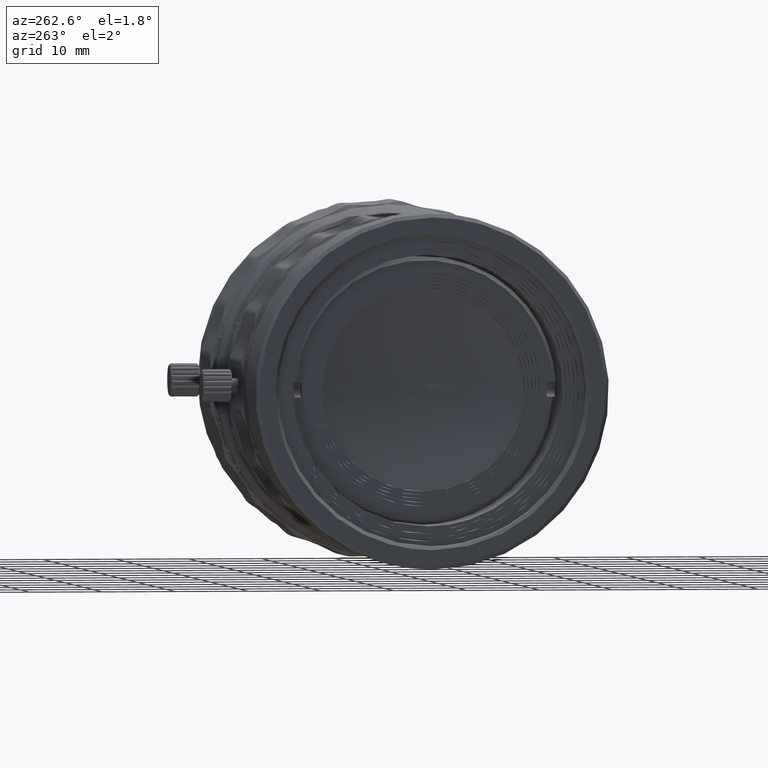
[diagram: clean part render]
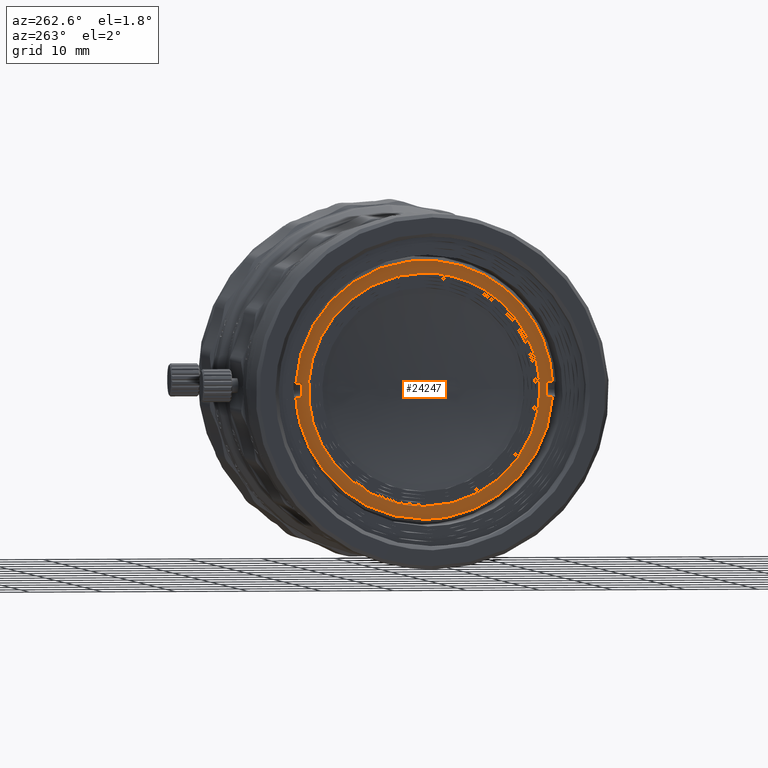
[diagram: same view with one face highlighted and labeled with its STEP entity id]
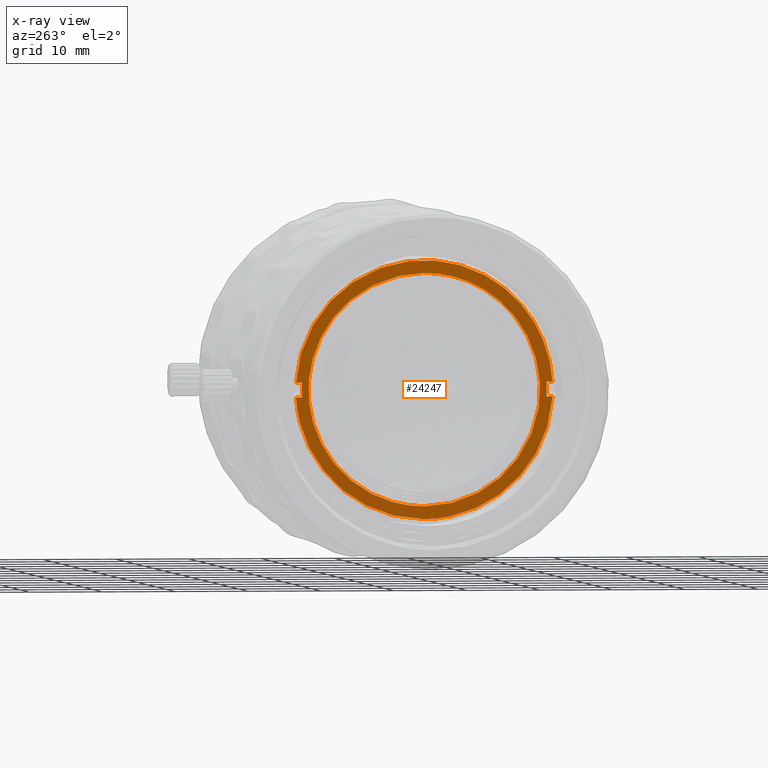
[diagram: x-ray of the same camera — body ghosted, the highlighted face saturated]
A machine part, auxiliary view. The second image highlights one B-rep face of the part: STEP entity #24247.
The next image is the same camera in x-ray: the body ghosted, the highlighted face saturated — about 0% of this face is hidden behind the body in this view.
In plain terms, the highlighted face is a freeform B-spline surface patch.
Its self-contained STEP definition (entity closure, byte-faithful):
#485 = CARTESIAN_POINT ( 'NONE',  ( 4.929999999666670796, 16.80000000060239884, -1.000000003418296091 ) ) ;
#945 = EDGE_CURVE ( 'NONE', #84180, #15927, #22776, .T. ) ;
#1522 = CARTESIAN_POINT ( 'NONE',  ( 4.930000000000000604, -17.83310562000000132, 17.86179722500000011 ) ) ;
#1565 = ORIENTED_EDGE ( 'NONE', *, *, #51378, .F. ) ;
#2072 = VERTEX_POINT ( 'NONE', #4053 ) ;
#4053 = CARTESIAN_POINT ( 'NONE',  ( 4.930000000000000604, -7.232328283580928952E-10, -17.64999725505024841 ) ) ;
#4436 = EDGE_CURVE ( 'NONE', #15927, #84180, #37191, .T. ) ;
#5562 = CARTESIAN_POINT ( 'NONE',  ( 4.930000000000006821, 9.880265853349966321, -17.64999725800000618 ) ) ;
#7749 = CARTESIAN_POINT ( 'NONE',  ( 4.929999999500000563, -17.62164586679725176, -1.000000002502931862 ) ) ;
#7774 = CARTESIAN_POINT ( 'NONE',  ( 4.929999999666670796, -16.79999999993575344, 1.000000003418296091 ) ) ;
#11230 = CARTESIAN_POINT ( 'NONE',  ( 4.930000000000000604, -4.014859207963329467E-09, 15.89999999689049837 ) ) ;
#12707 = VERTEX_POINT ( 'NONE', #7749 ) ;
#12811 = CARTESIAN_POINT ( 'NONE',  ( 4.930000000000000604, -6.184742774372570210E-10, -15.89999999689049837 ) ) ;
#13035 = CARTESIAN_POINT ( 'NONE',  ( 4.930000000000000604, 16.80000000060239884, 1.000000003418296091 ) ) ;
#13428 = ORIENTED_EDGE ( 'NONE', *, *, #4436, .F. ) ;
#14653 = CARTESIAN_POINT ( 'NONE',  ( 4.929999999583330350, 17.62164586726684945, -1.000000003562524054 ) ) ;
#15231 =( BOUNDED_CURVE ( )  B_SPLINE_CURVE ( 3, ( #25122, #58030, #25545, #32036 ),
 .UNSPECIFIED., .F., .F. ) 
 B_SPLINE_CURVE_WITH_KNOTS ( ( 4, 4 ),
 ( -3.028217476546394948, 0.0000000000000000000 ),
 .UNSPECIFIED. ) 
 CURVE ( )  GEOMETRIC_REPRESENTATION_ITEM ( )  RATIONAL_B_SPLINE_CURVE ( ( 1.000000000000000000, 0.3711048216059860128, 0.3711048216059860128, 1.000000000000000000 ) ) 
 REPRESENTATION_ITEM ( '' )  );
#15854 = VERTEX_POINT ( 'NONE', #76877 ) ;
#15927 = VERTEX_POINT ( 'NONE', #12811 ) ;
#16618 = B_SPLINE_CURVE_WITH_KNOTS ( 'NONE', 1,
 ( #23993, #50362 ),
 .UNSPECIFIED., .F., .F.,
 ( 2, 2 ),
 ( 0.0000000000000000000, 1.000000000000000000 ),
 .UNSPECIFIED. ) ;
#16823 = EDGE_CURVE ( 'NONE', #12707, #2072, #27727, .T. ) ;
#17309 = B_SPLINE_SURFACE_WITH_KNOTS ( 'NONE', 1, 1, ( 
 ( #67264, #34394 ),
 ( #1522, #21394 ) ),
 .UNSPECIFIED., .F., .F., .F.,
 ( 2, 2 ),
 ( 2, 2 ),
 ( 0.0000000000000000000, 1.000000000000000000 ),
 ( 0.0000000000000000000, 1.000000000000000000 ),
 .UNSPECIFIED. ) ;
#19364 = CARTESIAN_POINT ( 'NONE',  ( 4.929999999583330350, 17.62164586726684945, -1.000000003562524054 ) ) ;
#20531 = CARTESIAN_POINT ( 'NONE',  ( 4.929999999500000563, -17.62164586679725176, -1.000000002502931862 ) ) ;
#21062 = VERTEX_POINT ( 'NONE', #14653 ) ;
#21394 = CARTESIAN_POINT ( 'NONE',  ( 4.930000000000000604, -17.83310562000000132, -17.86179722500000011 ) ) ;
#22776 =( BOUNDED_CURVE ( )  B_SPLINE_CURVE ( 3, ( #77233, #24010, #45186, #37014, #52122, #38722, #65102 ),
 .UNSPECIFIED., .F., .F. ) 
 B_SPLINE_CURVE_WITH_KNOTS ( ( 4, 3, 4 ),
 ( -3.141592653589795336, -1.570796326794897668, 0.0000000000000000000 ),
 .UNSPECIFIED. ) 
 CURVE ( )  GEOMETRIC_REPRESENTATION_ITEM ( )  RATIONAL_B_SPLINE_CURVE ( ( 1.000000000000000000, 0.8047378540760217192, 0.8047378540760217192, 1.000000000000000000, 0.8047378540760217192, 0.8047378540760217192, 1.000000000000000000 ) ) 
 REPRESENTATION_ITEM ( '' )  );
#23874 = ORIENTED_EDGE ( 'NONE', *, *, #72674, .F. ) ;
#23993 = CARTESIAN_POINT ( 'NONE',  ( 4.929999999666670796, 16.80000000060239884, -1.000000003418296091 ) ) ;
#24010 = CARTESIAN_POINT ( 'NONE',  ( 4.930000000000001492, 9.314004353260196822, 15.90000000382067036 ) ) ;
#24247 = ADVANCED_FACE ( 'NONE', ( #73766, #80675 ), #17309, .F. ) ;
#24259 = EDGE_CURVE ( 'NONE', #26019, #15854, #47422, .T. ) ;
#25122 = CARTESIAN_POINT ( 'NONE',  ( 4.930000000000000604, 17.62164586858134996, 1.000000000112312160 ) ) ;
#25545 = CARTESIAN_POINT ( 'NONE',  ( 4.929999999999959748, -15.82809388085889424, 32.60533807955347640 ) ) ;
#26019 = VERTEX_POINT ( 'NONE', #80602 ) ;
#26437 = VERTEX_POINT ( 'NONE', #82605 ) ;
#26603 = CARTESIAN_POINT ( 'NONE',  ( 4.929999999666670796, -16.79999999993575344, -1.000000003418296091 ) ) ;
#27105 =( BOUNDED_CURVE ( )  B_SPLINE_CURVE ( 3, ( #30206, #5562, #31928, #19364 ),
 .UNSPECIFIED., .F., .F. ) 
 B_SPLINE_CURVE_WITH_KNOTS ( ( 4, 4 ),
 ( -1.514108738137390109, 0.0000000000000000000 ),
 .UNSPECIFIED. ) 
 CURVE ( )  GEOMETRIC_REPRESENTATION_ITEM ( )  RATIONAL_B_SPLINE_CURVE ( ( 1.000000000000000000, 0.8179081143775381868, 0.8179081143775381868, 1.000000000000000000 ) ) 
 REPRESENTATION_ITEM ( '' )  );
#27727 =( BOUNDED_CURVE ( )  B_SPLINE_CURVE ( 3, ( #38384, #53043, #78184, #44852 ),
 .UNSPECIFIED., .F., .F. ) 
 B_SPLINE_CURVE_WITH_KNOTS ( ( 4, 4 ),
 ( -1.514108738140599986, 0.0000000000000000000 ),
 .UNSPECIFIED. ) 
 CURVE ( )  GEOMETRIC_REPRESENTATION_ITEM ( )  RATIONAL_B_SPLINE_CURVE ( ( 1.000000000000000000, 0.8179081143775381868, 0.8179081143775381868, 1.000000000000000000 ) ) 
 REPRESENTATION_ITEM ( '' )  );
#29564 = ORIENTED_EDGE ( 'NONE', *, *, #24259, .T. ) ;
#29601 = B_SPLINE_CURVE_WITH_KNOTS ( 'NONE', 1,
 ( #60543, #7774 ),
 .UNSPECIFIED., .F., .F.,
 ( 2, 2 ),
 ( 0.0000000000000000000, 1.000000000000000000 ),
 .UNSPECIFIED. ) ;
#30012 = CARTESIAN_POINT ( 'NONE',  ( 4.929999999666670796, -16.79999999993575344, 1.000000003418296091 ) ) ;
#30089 = B_SPLINE_CURVE_WITH_KNOTS ( 'NONE', 1,
 ( #26603, #20531 ),
 .UNSPECIFIED., .F., .F.,
 ( 2, 2 ),
 ( 0.0000000000000000000, 1.000000000000000000 ),
 .UNSPECIFIED. ) ;
#30206 = CARTESIAN_POINT ( 'NONE',  ( 4.930000000000000604, -7.232328283580928952E-10, -17.64999725505024841 ) ) ;
#31266 = CARTESIAN_POINT ( 'NONE',  ( 4.929999999500000563, -17.62164586665369725, 1.000000001148296125 ) ) ;
#31928 = CARTESIAN_POINT ( 'NONE',  ( 4.930000000000000604, 17.06185734716835967, -10.86439507773709856 ) ) ;
#32036 = CARTESIAN_POINT ( 'NONE',  ( 4.929999999500000563, -17.62164586665369725, 1.000000001148296125 ) ) ;
#34394 = CARTESIAN_POINT ( 'NONE',  ( 4.930000000000000604, 17.83310562200000149, -17.86179722500000011 ) ) ;
#36364 = CARTESIAN_POINT ( 'NONE',  ( 4.930000000000000604, -31.79999998776686709, 15.89999998695543404 ) ) ;
#36983 = ORIENTED_EDGE ( 'NONE', *, *, #16823, .F. ) ;
#37014 = CARTESIAN_POINT ( 'NONE',  ( 4.930000000000000604, 15.90000000000000036, 3.261140982884547120E-09 ) ) ;
#37191 =( BOUNDED_CURVE ( )  B_SPLINE_CURVE ( 3, ( #83895, #43253, #36364, #11230 ),
 .UNSPECIFIED., .F., .F. ) 
 B_SPLINE_CURVE_WITH_KNOTS ( ( 4, 4 ),
 ( -3.141592653589795336, 0.0000000000000000000 ),
 .UNSPECIFIED. ) 
 CURVE ( )  GEOMETRIC_REPRESENTATION_ITEM ( )  RATIONAL_B_SPLINE_CURVE ( ( 1.000000000000000000, 0.3333333335299309419, 0.3333333335299309419, 1.000000000000000000 ) ) 
 REPRESENTATION_ITEM ( '' )  );
#37866 = EDGE_CURVE ( 'NONE', #2072, #21062, #27105, .T. ) ;
#38384 = CARTESIAN_POINT ( 'NONE',  ( 4.929999999500000563, -17.62164586679725176, -1.000000002502931862 ) ) ;
#38722 = CARTESIAN_POINT ( 'NONE',  ( 4.930000000000001492, 9.314004359782478204, -15.90000000000000213 ) ) ;
#40237 = CARTESIAN_POINT ( 'NONE',  ( 4.930000000000000604, -4.014859207963329467E-09, 15.89999999689049837 ) ) ;
#43253 = CARTESIAN_POINT ( 'NONE',  ( 4.930000000000000604, -31.79999998410000828, -15.89999999428915523 ) ) ;
#43732 = ORIENTED_EDGE ( 'NONE', *, *, #47784, .F. ) ;
#44802 = ORIENTED_EDGE ( 'NONE', *, *, #54618, .F. ) ;
#44852 = CARTESIAN_POINT ( 'NONE',  ( 4.930000000000000604, -7.232328283580928952E-10, -17.64999725505024841 ) ) ;
#45186 = CARTESIAN_POINT ( 'NONE',  ( 4.930000000000001492, 15.89999999808967068, 9.314004363043620671 ) ) ;
#46145 = CARTESIAN_POINT ( 'NONE',  ( 4.929999999583330350, 17.62164586726684945, -1.000000003562524054 ) ) ;
#46431 = B_SPLINE_CURVE_WITH_KNOTS ( 'NONE', 1,
 ( #46145, #47416 ),
 .UNSPECIFIED., .F., .F.,
 ( 2, 2 ),
 ( 0.0000000000000000000, 1.000000000000000000 ),
 .UNSPECIFIED. ) ;
#47416 = CARTESIAN_POINT ( 'NONE',  ( 4.929999999666670796, 16.80000000060239884, -1.000000003418296091 ) ) ;
#47422 = B_SPLINE_CURVE_WITH_KNOTS ( 'NONE', 1,
 ( #76320, #30012 ),
 .UNSPECIFIED., .F., .F.,
 ( 2, 2 ),
 ( 0.0000000000000000000, 1.000000000000000000 ),
 .UNSPECIFIED. ) ;
#47784 = EDGE_CURVE ( 'NONE', #53414, #15854, #29601, .T. ) ;
#50362 = CARTESIAN_POINT ( 'NONE',  ( 4.930000000000000604, 16.80000000060239884, 1.000000003418296091 ) ) ;
#50942 = VERTEX_POINT ( 'NONE', #485 ) ;
#51378 = EDGE_CURVE ( 'NONE', #50942, #26437, #16618, .T. ) ;
#52122 = CARTESIAN_POINT ( 'NONE',  ( 4.930000000000001492, 15.90000000191033713, -9.314004356521339290 ) ) ;
#52667 = CARTESIAN_POINT ( 'NONE',  ( 4.930000000000000604, 17.62164586858134996, 1.000000000112312160 ) ) ;
#53043 = CARTESIAN_POINT ( 'NONE',  ( 4.930000000000000604, -17.06185734911946028, -10.86439507467302334 ) ) ;
#53414 = VERTEX_POINT ( 'NONE', #31266 ) ;
#54015 = VERTEX_POINT ( 'NONE', #52667 ) ;
#54618 = EDGE_CURVE ( 'NONE', #54015, #53414, #15231, .T. ) ;
#56772 = EDGE_LOOP ( 'NONE', ( #43732, #44802, #71831, #1565, #63715, #75910, #36983, #23874, #29564 ) ) ;
#57613 = EDGE_CURVE ( 'NONE', #26437, #54015, #82800, .T. ) ;
#58030 = CARTESIAN_POINT ( 'NONE',  ( 4.929999999999959748, 15.82809388671436679, 32.60533807671097151 ) ) ;
#59344 = CARTESIAN_POINT ( 'NONE',  ( 4.930000000000000604, 17.62164586858134996, 1.000000000112312160 ) ) ;
#60543 = CARTESIAN_POINT ( 'NONE',  ( 4.929999999500000563, -17.62164586665369725, 1.000000001148296125 ) ) ;
#63715 = ORIENTED_EDGE ( 'NONE', *, *, #76043, .F. ) ;
#65102 = CARTESIAN_POINT ( 'NONE',  ( 4.930000000000000604, -6.184742774372570210E-10, -15.89999999689049837 ) ) ;
#67264 = CARTESIAN_POINT ( 'NONE',  ( 4.930000000000000604, 17.83310562200000149, 17.86179722500000011 ) ) ;
#71831 = ORIENTED_EDGE ( 'NONE', *, *, #57613, .F. ) ;
#72674 = EDGE_CURVE ( 'NONE', #26019, #12707, #30089, .T. ) ;
#73766 = FACE_BOUND ( 'NONE', #76848, .T. ) ;
#75910 = ORIENTED_EDGE ( 'NONE', *, *, #37866, .F. ) ;
#76043 = EDGE_CURVE ( 'NONE', #21062, #50942, #46431, .T. ) ;
#76320 = CARTESIAN_POINT ( 'NONE',  ( 4.929999999666670796, -16.79999999993575344, -1.000000003418296091 ) ) ;
#76848 = EDGE_LOOP ( 'NONE', ( #78041, #13428 ) ) ;
#76877 = CARTESIAN_POINT ( 'NONE',  ( 4.929999999666670796, -16.79999999993575344, 1.000000003418296091 ) ) ;
#77233 = CARTESIAN_POINT ( 'NONE',  ( 4.930000000000000604, -4.014859207963329467E-09, 15.89999999689049837 ) ) ;
#78041 = ORIENTED_EDGE ( 'NONE', *, *, #945, .F. ) ;
#78184 = CARTESIAN_POINT ( 'NONE',  ( 4.930000000000006821, -9.880265856519665491, -17.64999725622564597 ) ) ;
#80602 = CARTESIAN_POINT ( 'NONE',  ( 4.929999999666670796, -16.79999999993575344, -1.000000003418296091 ) ) ;
#80675 = FACE_OUTER_BOUND ( 'NONE', #56772, .T. ) ;
#82605 = CARTESIAN_POINT ( 'NONE',  ( 4.930000000000000604, 16.80000000060239884, 1.000000003418296091 ) ) ;
#82800 = B_SPLINE_CURVE_WITH_KNOTS ( 'NONE', 1,
 ( #13035, #59344 ),
 .UNSPECIFIED., .F., .F.,
 ( 2, 2 ),
 ( 0.0000000000000000000, 1.000000000000000000 ),
 .UNSPECIFIED. ) ;
#83895 = CARTESIAN_POINT ( 'NONE',  ( 4.930000000000000604, -6.184742774372570210E-10, -15.89999999689049837 ) ) ;
#84180 = VERTEX_POINT ( 'NONE', #40237 ) ;